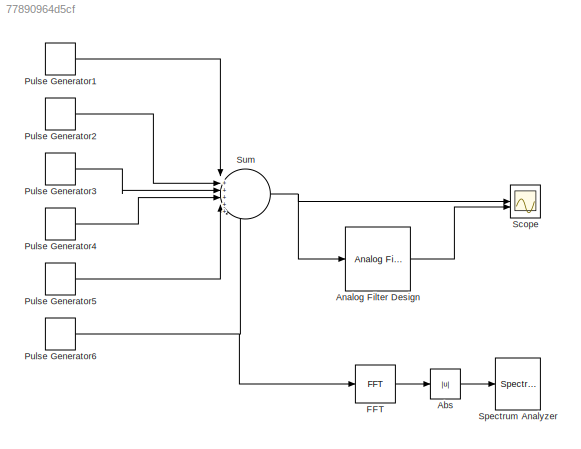
MODEL slx_77890964d5cf
KIND model
CONFIG AbsTol = auto
CONFIG EnableMultiTasking = off
CONFIG FixedStep = auto
CONFIG MaxStep = auto
CONFIG MinStep = auto
CONFIG RelTol = 1e-3
CONFIG SampleTimeConstraint = Unconstrained
CONFIG SolverName = VariableStepAuto
CONFIG StartTime = 0.0
CONFIG StopTime = 10
BLOCK [Abs] Abs
  SaturateOnIntegerOverflow = off
BLOCK [Reference] Analog Filter Design  REF=dspfdesign/Analog
Filter Design
  SourceBlock = dspfdesign/Analog\nFilter Design
  SourceType = Analog Filter Design
BLOCK [Reference] FFT  REF=dspxfrm3/FFT
  SourceBlock = dspxfrm3/FFT
  SourceType = FFT
BLOCK [DiscretePulseGenerator] Pulse Generator1
  Amplitude = 4
  Period = 1024
  PulseWidth = 10
  SampleTime = 1/1000
BLOCK [DiscretePulseGenerator] Pulse Generator2
  Amplitude = 2
  Period = 1024
  PhaseDelay = 10
  PulseWidth = 10
  SampleTime = 1/1000
BLOCK [DiscretePulseGenerator] Pulse Generator3
  Amplitude = -1
  Period = 1024
  PhaseDelay = 20
  PulseWidth = 10
  SampleTime = 1/1000
BLOCK [DiscretePulseGenerator] Pulse Generator4
  Amplitude = -3
  Period = 1024
  PhaseDelay = 30
  PulseWidth = 10
  SampleTime = 1/1000
BLOCK [DiscretePulseGenerator] Pulse Generator5
  Amplitude = 2
  Period = 1024
  PhaseDelay = 40
  PulseWidth = 10
  SampleTime = 1/1000
BLOCK [DiscretePulseGenerator] Pulse Generator6
  Amplitude = -4
  Period = 1024
  PhaseDelay = 50
  PulseWidth = 10
  SampleTime = 1/1000
BLOCK [Scope] Scope
  Floating = off
  NumInputPorts = 2
  ScopeSpecificationString = Simulink.scopes.TimeScopeBlockCfg('CurrentConfiguration', extmgr.ConfigurationSet(extmgr.Configuration('Core','General UI',true),extmgr.Configuration('Core','Source UI',true),extmgr.Configuration('Sources','WiredSimulink',true),extmgr.Configuration('Visuals','Time Domain',true,'SerializedDisplays',{struct('MinYLimReal','-4.00000','MaxYLimReal','3.99574','YLabelReal','','MinYLimMag','0.00000','MaxY...<+1393ch>
BLOCK [SpectrumAnalyzer] Spectrum Analyzer
  AveragingMethod = Exponential
  AxesScaling = Manual
  DefaultConfigurationName = spbscopes.SpectrumAnalyzerBlockCfg
  FrequencyInputRBWFromPort = 0
  FrequencyInputRBWPort = 0
  FrequencyVectorFromPort = 0
  FrequencyVectorPort = 0
  GraphicalSettings = {"GraphicalSettings":{"SpectralMask":{"CustomReferenceLevel":"0","EnabledMasks":"None","LowerMask":"-Inf","MaskFrequencyOffset":"0","ReferenceLevel":"Custom","SelectedChannel":"1","UpperMask":"Inf"},"Style":{"AxesColor":"[0 0 0]","DisplayName":"","LabelsColor":"[0.686274509803922 0.686274509803922 0.686274509803922]","LineStyle":"-","LineWidth":"0.5","Marker":"none","MarkerEdgeColor":"auto","Marke...<+92ch>
  IsFrequencyInputMode = 0
  SampleRate = 1000
  ScopeFrameLocation = window
  ScopeSpecificationString = spbscopes.SpectrumAnalyzerBlockCfg('CurrentConfiguration', extmgr.ConfigurationSet(extmgr.Configuration('Core','General UI',true),extmgr.Configuration('Core','Source UI',true),extmgr.Configuration('Sources','WiredSimulink',true),extmgr.Configuration('Visuals','Spectrum',true,'AxesProperties',struct('Color',{[0 0 0],[0 0 0]},'XColor',{[0.686274509803922 0.686274509803922 0.686274509803922],[0.68627...<+1836ch>
  Span = 1000
  StartFrequency = -500
  StopFrequency = 500
  WasSavedAsWebScope = on
  WindowPosition = [2882.000000,2.000000,958.000000,1048.000000,]
  YLimits = [-75.775909332143640995,14.302458552604326414]
BLOCK [Sum] Sum
  Inputs = |++++++
LINE Abs:1 -> Spectrum Analyzer:1
LINE Analog Filter Design:1 -> Scope:2
LINE FFT:1 -> Abs:1
LINE Pulse Generator1:1 -> Sum:1
LINE Pulse Generator2:1 -> Sum:2
LINE Pulse Generator3:1 -> Sum:3
LINE Pulse Generator4:1 -> Sum:4
LINE Pulse Generator5:1 -> Sum:5
NET Pulse Generator6:1 -> FFT:1, Sum:6
NET Sum:1 -> Analog Filter Design:1, Scope:1
note: NET lines group one-source signal fan-out (src -> all destinations, sorted); 1:1 wires keep LINE
